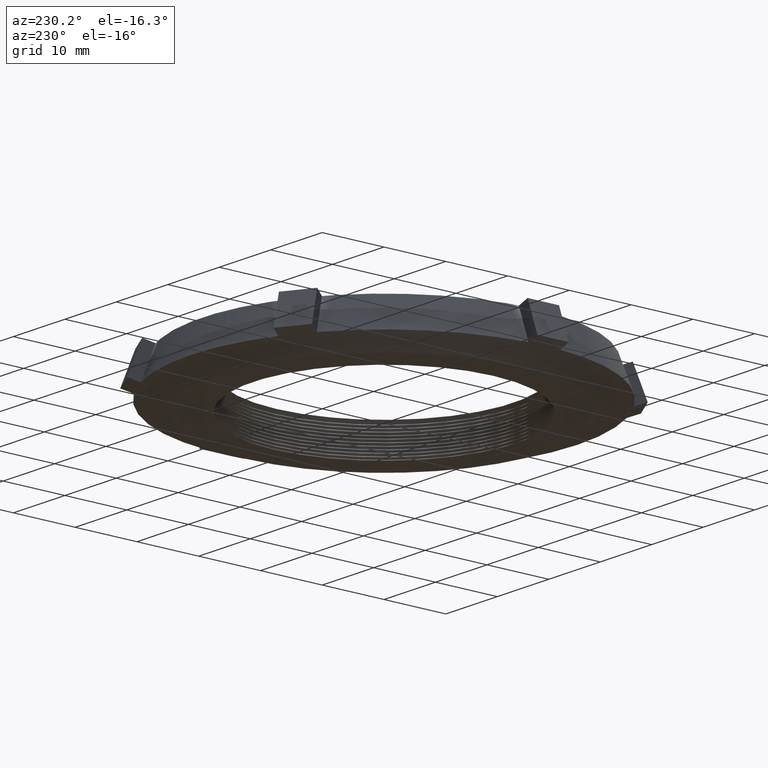
[diagram: clean part render]
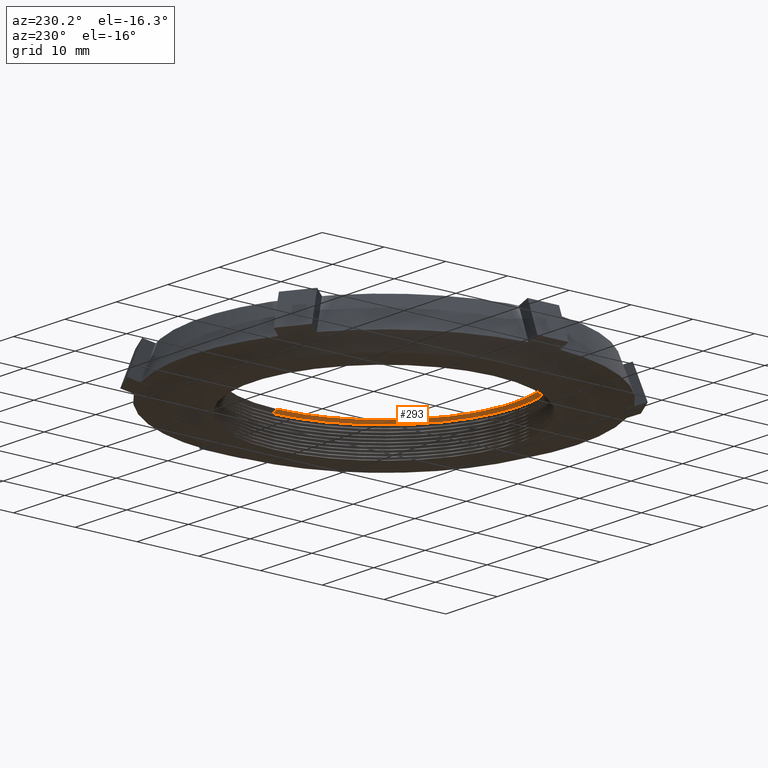
[diagram: same view with one face highlighted and labeled with its STEP entity id]
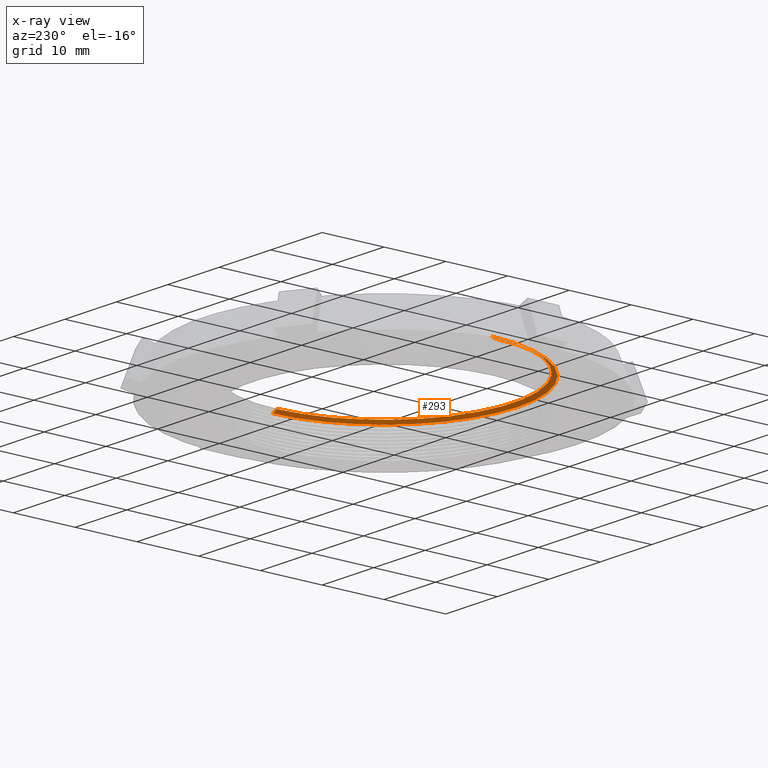
[diagram: x-ray of the same camera — body ghosted, the highlighted face saturated]
A machine part, auxiliary view. The second image highlights one B-rep face of the part: STEP entity #293.
The next image is the same camera in x-ray: the body ghosted, the highlighted face saturated — about 16% of this face is hidden behind the body in this view.
In plain terms, the highlighted conical surface has half-angle 60 deg.
Its self-contained STEP definition (entity closure, byte-faithful):
#179 = EDGE_CURVE ( 'NONE', #180, #181, #1463, .T. ) ;
#180 = VERTEX_POINT ( 'NONE', #1399 ) ;
#181 = VERTEX_POINT ( 'NONE', #1534 ) ;
#182 = ORIENTED_EDGE ( 'NONE', *, *, #183, .T. ) ;
#183 = EDGE_CURVE ( 'NONE', #181, #187, #1373, .T. ) ;
#184 = ORIENTED_EDGE ( 'NONE', *, *, #186, .T. ) ;
#186 = EDGE_CURVE ( 'NONE', #187, #238, #1372, .T. ) ;
#187 = VERTEX_POINT ( 'NONE', #1551 ) ;
#238 = VERTEX_POINT ( 'NONE', #1512 ) ;
#271 = ORIENTED_EDGE ( 'NONE', *, *, #272, .F. ) ;
#272 = EDGE_CURVE ( 'NONE', #180, #238, #1598, .T. ) ;
#293 = ADVANCED_FACE ( 'NONE', ( #1648 ), #1647, .F. ) ;
#294 = EDGE_LOOP ( 'NONE', ( #295, #182, #184, #271 ) ) ;
#295 = ORIENTED_EDGE ( 'NONE', *, *, #179, .T. ) ;
#1371 = AXIS2_PLACEMENT_3D ( 'NONE', #1554, #1553, #1552 ) ;
#1372 = CIRCLE ( 'NONE', #1371, 0.8500000000000002000 ) ;
#1373 = LINE ( 'NONE', #1481, #1480 ) ;
#1399 = CARTESIAN_POINT ( 'NONE',  ( -0.8218854262651085200, 0.0000000000000000000, 0.1033968064703875100 ) ) ;
#1463 = CIRCLE ( 'NONE', #1535, 0.8218854262651085200 ) ;
#1479 = DIRECTION ( 'NONE',  ( 0.8660254037844438100, 1.060540212046019900E-016, -0.4999999999999910600 ) ) ;
#1480 = VECTOR ( 'NONE', #1479, 39.37007874015748100 ) ;
#1481 = CARTESIAN_POINT ( 'NONE',  ( 0.8500000000000002000, 1.040915400749020800E-016, 0.08716484975639657300 ) ) ;
#1507 = DIRECTION ( 'NONE',  ( -1.000000000000000000, 0.0000000000000000000, 0.0000000000000000000 ) ) ;
#1508 = DIRECTION ( 'NONE',  ( 0.0000000000000000000, 0.0000000000000000000, 1.000000000000000000 ) ) ;
#1509 = CARTESIAN_POINT ( 'NONE',  ( 0.0000000000000000000, 0.0000000000000000000, 0.1033968064703875100 ) ) ;
#1512 = CARTESIAN_POINT ( 'NONE',  ( -0.8500000000000002000, 0.0000000000000000000, 0.08716484975639657300 ) ) ;
#1534 = CARTESIAN_POINT ( 'NONE',  ( 0.8218854262651085200, 1.008393178510863400E-016, 0.1033968064703875100 ) ) ;
#1535 = AXIS2_PLACEMENT_3D ( 'NONE', #1509, #1508, #1507 ) ;
#1551 = CARTESIAN_POINT ( 'NONE',  ( 0.8500000000000002000, 1.040915400749020800E-016, 0.08716484975639657300 ) ) ;
#1552 = DIRECTION ( 'NONE',  ( -1.000000000000000000, 0.0000000000000000000, 0.0000000000000000000 ) ) ;
#1553 = DIRECTION ( 'NONE',  ( -0.0000000000000000000, -0.0000000000000000000, -1.000000000000000000 ) ) ;
#1554 = CARTESIAN_POINT ( 'NONE',  ( 0.0000000000000000000, 0.0000000000000000000, 0.08716484975639657300 ) ) ;
#1595 = DIRECTION ( 'NONE',  ( -0.8660254037844438100, 0.0000000000000000000, -0.4999999999999910600 ) ) ;
#1596 = VECTOR ( 'NONE', #1595, 39.37007874015748100 ) ;
#1597 = CARTESIAN_POINT ( 'NONE',  ( -0.8500000000000002000, 0.0000000000000000000, 0.08716484975639657300 ) ) ;
#1598 = LINE ( 'NONE', #1597, #1596 ) ;
#1642 = DIRECTION ( 'NONE',  ( -1.000000000000000000, 0.0000000000000000000, 0.0000000000000000000 ) ) ;
#1643 = DIRECTION ( 'NONE',  ( -0.0000000000000000000, -0.0000000000000000000, -1.000000000000000000 ) ) ;
#1644 = CARTESIAN_POINT ( 'NONE',  ( 0.0000000000000000000, 0.0000000000000000000, 0.08716484975639657300 ) ) ;
#1645 = AXIS2_PLACEMENT_3D ( 'NONE', #1644, #1643, #1642 ) ;
#1647 = CONICAL_SURFACE ( 'NONE', #1645, 0.8500000000000002000, 1.047197551196608100 ) ;
#1648 = FACE_OUTER_BOUND ( 'NONE', #294, .T. ) ;